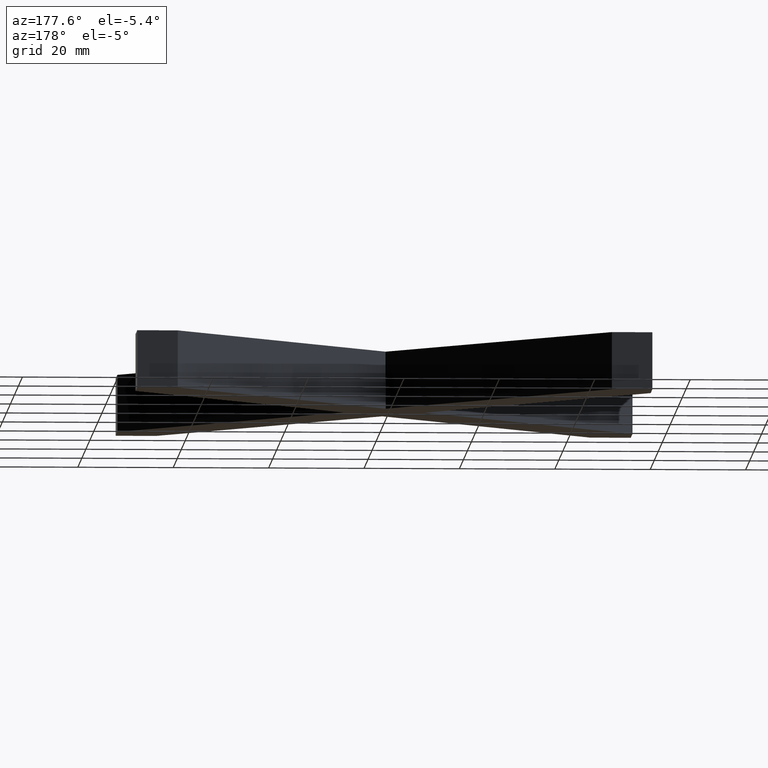
[diagram: clean part render]
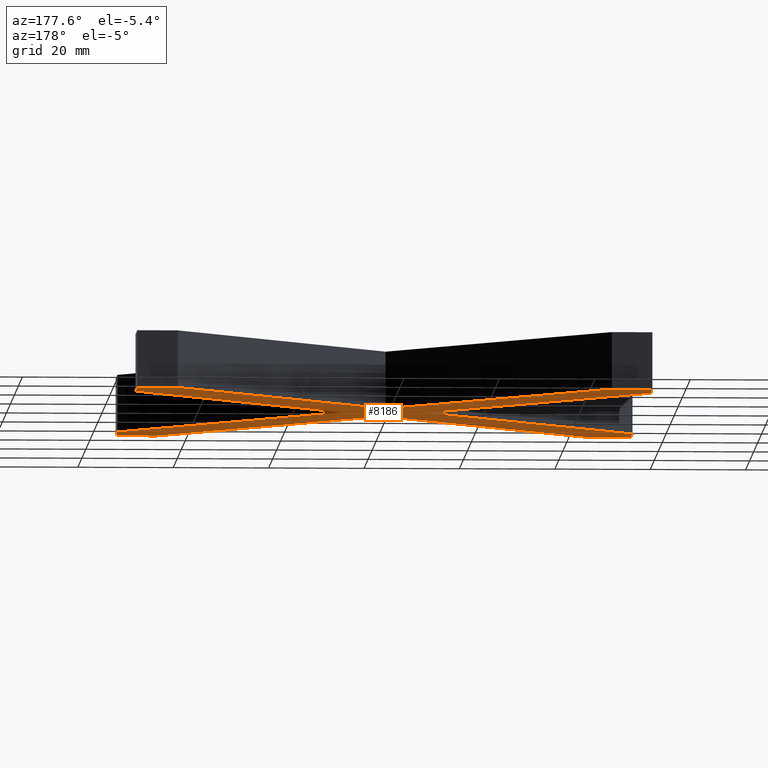
[diagram: same view with one face highlighted and labeled with its STEP entity id]
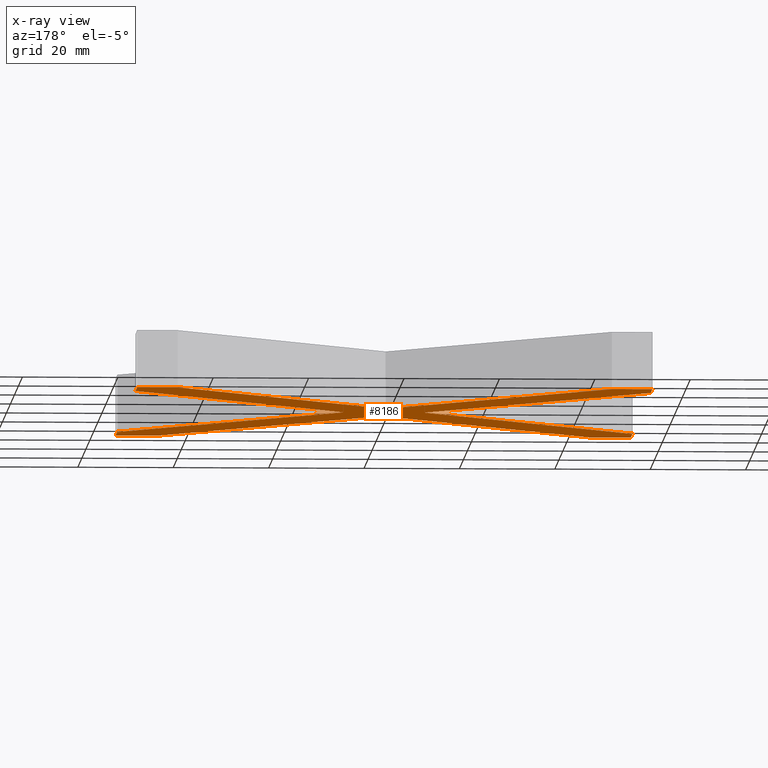
[diagram: x-ray of the same camera — body ghosted, the highlighted face saturated]
A machine part, auxiliary view. The second image highlights one B-rep face of the part: STEP entity #8186.
The next image is the same camera in x-ray: the body ghosted, the highlighted face saturated — about 0% of this face is hidden behind the body in this view.
In plain terms, the highlighted planar face has unit normal (-0, 0, 1).
Its self-contained STEP definition (entity closure, byte-faithful):
#9 = VECTOR ( 'NONE', #13429, 1000.000000000000000 ) ;
#57 = EDGE_CURVE ( 'NONE', #9703, #6761, #6196, .T. ) ;
#248 = DIRECTION ( 'NONE',  ( -1.000000000000000000, -0.000000000000000000, -0.000000000000000000 ) ) ;
#468 = VERTEX_POINT ( 'NONE', #7399 ) ;
#497 = ORIENTED_EDGE ( 'NONE', *, *, #13495, .F. ) ;
#508 = CARTESIAN_POINT ( 'NONE',  ( 54.00000000000002132, -45.51471862576144645, 0.000000000000000000 ) ) ;
#573 = CARTESIAN_POINT ( 'NONE',  ( -8.485281374238567764, -6.938893903907228378E-15, 0.000000000000000000 ) ) ;
#695 = CARTESIAN_POINT ( 'NONE',  ( 8.485281374238560659, -1.084202172485504434E-14, 0.000000000000000000 ) ) ;
#705 = EDGE_CURVE ( 'NONE', #9226, #12818, #10268, .T. ) ;
#969 = LINE ( 'NONE', #11660, #6497 ) ;
#1083 = ORIENTED_EDGE ( 'NONE', *, *, #1473, .F. ) ;
#1111 = LINE ( 'NONE', #9318, #1284 ) ;
#1146 = VECTOR ( 'NONE', #9923, 1000.000000000000000 ) ;
#1245 = CARTESIAN_POINT ( 'NONE',  ( 45.51471862576144645, 53.99999999999999289, 0.000000000000000000 ) ) ;
#1284 = VECTOR ( 'NONE', #9274, 1000.000000000000114 ) ;
#1288 = CARTESIAN_POINT ( 'NONE',  ( -45.51471862576142513, 53.99999999999999289, 0.000000000000000000 ) ) ;
#1394 = LINE ( 'NONE', #11746, #3353 ) ;
#1473 = EDGE_CURVE ( 'NONE', #7463, #11336, #13365, .T. ) ;
#1565 = EDGE_CURVE ( 'NONE', #12781, #7983, #1111, .T. ) ;
#1651 = EDGE_CURVE ( 'NONE', #13141, #9703, #6239, .T. ) ;
#1666 = CARTESIAN_POINT ( 'NONE',  ( -1.564418524095811927E-15, -8.485281374238574870, 0.000000000000000000 ) ) ;
#1965 = CARTESIAN_POINT ( 'NONE',  ( 45.51471862576143224, -54.00000000000000711, 0.000000000000000000 ) ) ;
#1985 = ORIENTED_EDGE ( 'NONE', *, *, #1651, .F. ) ;
#2033 = CARTESIAN_POINT ( 'NONE',  ( 54.00000000000000711, 53.99999999999999289, 0.000000000000000000 ) ) ;
#2066 = CARTESIAN_POINT ( 'NONE',  ( -53.99999999999999289, 45.51471862576142513, 0.000000000000000000 ) ) ;
#2278 = CARTESIAN_POINT ( 'NONE',  ( 45.51471862576143224, -54.00000000000000711, 0.000000000000000000 ) ) ;
#2422 = CARTESIAN_POINT ( 'NONE',  ( 54.00000000000002132, 45.51471862576142513, 0.000000000000000000 ) ) ;
#2456 = VECTOR ( 'NONE', #2900, 1000.000000000000000 ) ;
#2521 = ORIENTED_EDGE ( 'NONE', *, *, #1565, .F. ) ;
#2668 = EDGE_LOOP ( 'NONE', ( #1985, #7797, #2521, #13858, #10293, #1083, #5372, #497, #12018, #4051, #14574, #10814, #5881, #12834, #13518, #3741 ) ) ;
#2756 = AXIS2_PLACEMENT_3D ( 'NONE', #6897, #12746, #4803 ) ;
#2866 = CARTESIAN_POINT ( 'NONE',  ( -53.99999999999999289, 53.99999999999999289, 0.000000000000000000 ) ) ;
#2900 = DIRECTION ( 'NONE',  ( -1.635512977795599475E-15, 1.000000000000000000, -0.000000000000000000 ) ) ;
#3151 = VECTOR ( 'NONE', #12759, 1000.000000000000000 ) ;
#3281 = VECTOR ( 'NONE', #248, 1000.000000000000000 ) ;
#3353 = VECTOR ( 'NONE', #12929, 1000.000000000000000 ) ;
#3741 = ORIENTED_EDGE ( 'NONE', *, *, #57, .F. ) ;
#3978 = EDGE_CURVE ( 'NONE', #13712, #12781, #6552, .T. ) ;
#4051 = ORIENTED_EDGE ( 'NONE', *, *, #705, .F. ) ;
#4176 = LINE ( 'NONE', #1965, #1146 ) ;
#4250 = CARTESIAN_POINT ( 'NONE',  ( -45.51471862576141802, -54.00000000000000711, 0.000000000000000000 ) ) ;
#4544 = VERTEX_POINT ( 'NONE', #573 ) ;
#4769 = EDGE_CURVE ( 'NONE', #8168, #13193, #5491, .T. ) ;
#4803 = DIRECTION ( 'NONE',  ( 1.000000000000000000, 0.000000000000000000, 0.000000000000000000 ) ) ;
#4833 = CARTESIAN_POINT ( 'NONE',  ( -45.51471862576141802, -54.00000000000000711, 0.000000000000000000 ) ) ;
#5339 = DIRECTION ( 'NONE',  ( 0.7071067811865474617, 0.7071067811865476838, 0.000000000000000000 ) ) ;
#5372 = ORIENTED_EDGE ( 'NONE', *, *, #9003, .F. ) ;
#5422 = CARTESIAN_POINT ( 'NONE',  ( -53.99999999999997868, -54.00000000000000000, 0.000000000000000000 ) ) ;
#5491 = LINE ( 'NONE', #13171, #2456 ) ;
#5563 = EDGE_CURVE ( 'NONE', #6761, #8168, #9208, .T. ) ;
#5567 = DIRECTION ( 'NONE',  ( 0.7071067811865477948, 0.7071067811865473507, 0.000000000000000000 ) ) ;
#5663 = VECTOR ( 'NONE', #11506, 1000.000000000000000 ) ;
#5667 = EDGE_CURVE ( 'NONE', #12818, #8183, #9560, .T. ) ;
#5703 = DIRECTION ( 'NONE',  ( 0.000000000000000000, -1.000000000000000000, 0.000000000000000000 ) ) ;
#5738 = EDGE_CURVE ( 'NONE', #12733, #468, #1394, .T. ) ;
#5881 = ORIENTED_EDGE ( 'NONE', *, *, #14126, .F. ) ;
#5911 = CARTESIAN_POINT ( 'NONE',  ( -53.99999999999999289, 45.51471862576142513, 0.000000000000000000 ) ) ;
#6068 = DIRECTION ( 'NONE',  ( -0.7071067811865473507, -0.7071067811865476838, -0.000000000000000000 ) ) ;
#6196 = LINE ( 'NONE', #13125, #11510 ) ;
#6239 = LINE ( 'NONE', #508, #8522 ) ;
#6367 = VECTOR ( 'NONE', #11691, 1000.000000000000000 ) ;
#6497 = VECTOR ( 'NONE', #6068, 1000.000000000000114 ) ;
#6552 = LINE ( 'NONE', #4250, #8304 ) ;
#6761 = VERTEX_POINT ( 'NONE', #695 ) ;
#6864 = FACE_OUTER_BOUND ( 'NONE', #2668, .T. ) ;
#6888 = EDGE_CURVE ( 'NONE', #468, #9226, #9545, .T. ) ;
#6897 = CARTESIAN_POINT ( 'NONE',  ( 0.000000000000000000, 0.000000000000000000, 0.000000000000000000 ) ) ;
#7043 = PLANE ( 'NONE',  #2756 ) ;
#7399 = CARTESIAN_POINT ( 'NONE',  ( -5.509374826798535559E-15, 8.485281374238564212, 0.000000000000000000 ) ) ;
#7463 = VERTEX_POINT ( 'NONE', #12359 ) ;
#7473 = CARTESIAN_POINT ( 'NONE',  ( 54.00000000000002132, -45.51471862576144645, 0.000000000000000000 ) ) ;
#7711 = DIRECTION ( 'NONE',  ( 1.000000000000000000, -8.177564888978004278E-16, 0.000000000000000000 ) ) ;
#7797 = ORIENTED_EDGE ( 'NONE', *, *, #8409, .F. ) ;
#7983 = VERTEX_POINT ( 'NONE', #2278 ) ;
#8074 = CARTESIAN_POINT ( 'NONE',  ( -53.99999999999999289, 53.99999999999999289, 0.000000000000000000 ) ) ;
#8168 = VERTEX_POINT ( 'NONE', #2422 ) ;
#8183 = VERTEX_POINT ( 'NONE', #5911 ) ;
#8186 = ADVANCED_FACE ( 'NONE', ( #6864 ), #7043, .F. ) ;
#8304 = VECTOR ( 'NONE', #5339, 1000.000000000000000 ) ;
#8307 = VECTOR ( 'NONE', #5567, 999.9999999999998863 ) ;
#8409 = EDGE_CURVE ( 'NONE', #7983, #13141, #4176, .T. ) ;
#8522 = VECTOR ( 'NONE', #10844, 1000.000000000000000 ) ;
#8780 = EDGE_CURVE ( 'NONE', #11336, #13712, #12351, .T. ) ;
#9003 = EDGE_CURVE ( 'NONE', #4544, #7463, #969, .T. ) ;
#9076 = CARTESIAN_POINT ( 'NONE',  ( 8.485281374238560659, -1.084202172485504434E-14, 0.000000000000000000 ) ) ;
#9208 = LINE ( 'NONE', #9076, #8307 ) ;
#9226 = VERTEX_POINT ( 'NONE', #14435 ) ;
#9274 = DIRECTION ( 'NONE',  ( 0.7071067811865474617, -0.7071067811865474617, 0.000000000000000000 ) ) ;
#9318 = CARTESIAN_POINT ( 'NONE',  ( -1.564418524095811927E-15, -8.485281374238574870, 0.000000000000000000 ) ) ;
#9333 = CARTESIAN_POINT ( 'NONE',  ( 45.51471862576144645, 53.99999999999999289, 0.000000000000000000 ) ) ;
#9545 = LINE ( 'NONE', #1288, #3151 ) ;
#9560 = LINE ( 'NONE', #8074, #5663 ) ;
#9703 = VERTEX_POINT ( 'NONE', #7473 ) ;
#9869 = DIRECTION ( 'NONE',  ( -0.7071067811865477948, 0.7071067811865473507, -0.000000000000000000 ) ) ;
#9923 = DIRECTION ( 'NONE',  ( 1.000000000000000000, 0.000000000000000000, 0.000000000000000000 ) ) ;
#10032 = CARTESIAN_POINT ( 'NONE',  ( -53.99999999999997868, -45.51471862576143934, 0.000000000000000000 ) ) ;
#10268 = LINE ( 'NONE', #12649, #6367 ) ;
#10293 = ORIENTED_EDGE ( 'NONE', *, *, #8780, .F. ) ;
#10406 = VECTOR ( 'NONE', #7711, 1000.000000000000000 ) ;
#10769 = CARTESIAN_POINT ( 'NONE',  ( -53.99999999999997868, -54.00000000000000000, 0.000000000000000000 ) ) ;
#10814 = ORIENTED_EDGE ( 'NONE', *, *, #5738, .F. ) ;
#10844 = DIRECTION ( 'NONE',  ( -0.000000000000000000, 1.000000000000000000, -0.000000000000000000 ) ) ;
#11336 = VERTEX_POINT ( 'NONE', #10769 ) ;
#11506 = DIRECTION ( 'NONE',  ( 0.000000000000000000, -1.000000000000000000, 0.000000000000000000 ) ) ;
#11510 = VECTOR ( 'NONE', #9869, 1000.000000000000000 ) ;
#11660 = CARTESIAN_POINT ( 'NONE',  ( -53.99999999999997868, -45.51471862576143934, 0.000000000000000000 ) ) ;
#11691 = DIRECTION ( 'NONE',  ( -1.000000000000000000, -0.000000000000000000, -0.000000000000000000 ) ) ;
#11746 = CARTESIAN_POINT ( 'NONE',  ( -5.509374826798535559E-15, 8.485281374238564212, 0.000000000000000000 ) ) ;
#11932 = VECTOR ( 'NONE', #5703, 1000.000000000000000 ) ;
#12018 = ORIENTED_EDGE ( 'NONE', *, *, #5667, .F. ) ;
#12351 = LINE ( 'NONE', #5422, #10406 ) ;
#12359 = CARTESIAN_POINT ( 'NONE',  ( -53.99999999999997868, -45.51471862576143934, 0.000000000000000000 ) ) ;
#12649 = CARTESIAN_POINT ( 'NONE',  ( -53.99999999999999289, 53.99999999999999289, 0.000000000000000000 ) ) ;
#12693 = LINE ( 'NONE', #1245, #3281 ) ;
#12733 = VERTEX_POINT ( 'NONE', #9333 ) ;
#12746 = DIRECTION ( 'NONE',  ( -0.000000000000000000, 0.000000000000000000, 1.000000000000000000 ) ) ;
#12759 = DIRECTION ( 'NONE',  ( -0.7071067811865474617, 0.7071067811865475727, -0.000000000000000000 ) ) ;
#12781 = VERTEX_POINT ( 'NONE', #1666 ) ;
#12818 = VERTEX_POINT ( 'NONE', #2866 ) ;
#12821 = LINE ( 'NONE', #2066, #9 ) ;
#12834 = ORIENTED_EDGE ( 'NONE', *, *, #4769, .F. ) ;
#12929 = DIRECTION ( 'NONE',  ( -0.7071067811865477948, -0.7071067811865473507, -0.000000000000000000 ) ) ;
#13125 = CARTESIAN_POINT ( 'NONE',  ( 8.485281374238560659, -1.084202172485504434E-14, 0.000000000000000000 ) ) ;
#13141 = VERTEX_POINT ( 'NONE', #14437 ) ;
#13171 = CARTESIAN_POINT ( 'NONE',  ( 54.00000000000000711, 53.99999999999999289, 0.000000000000000000 ) ) ;
#13193 = VERTEX_POINT ( 'NONE', #2033 ) ;
#13365 = LINE ( 'NONE', #10032, #11932 ) ;
#13429 = DIRECTION ( 'NONE',  ( 0.7071067811865474617, -0.7071067811865475727, 0.000000000000000000 ) ) ;
#13495 = EDGE_CURVE ( 'NONE', #8183, #4544, #12821, .T. ) ;
#13518 = ORIENTED_EDGE ( 'NONE', *, *, #5563, .F. ) ;
#13712 = VERTEX_POINT ( 'NONE', #4833 ) ;
#13858 = ORIENTED_EDGE ( 'NONE', *, *, #3978, .F. ) ;
#14126 = EDGE_CURVE ( 'NONE', #13193, #12733, #12693, .T. ) ;
#14435 = CARTESIAN_POINT ( 'NONE',  ( -45.51471862576142513, 53.99999999999999289, 0.000000000000000000 ) ) ;
#14437 = CARTESIAN_POINT ( 'NONE',  ( 54.00000000000002132, -54.00000000000000711, 0.000000000000000000 ) ) ;
#14574 = ORIENTED_EDGE ( 'NONE', *, *, #6888, .F. ) ;